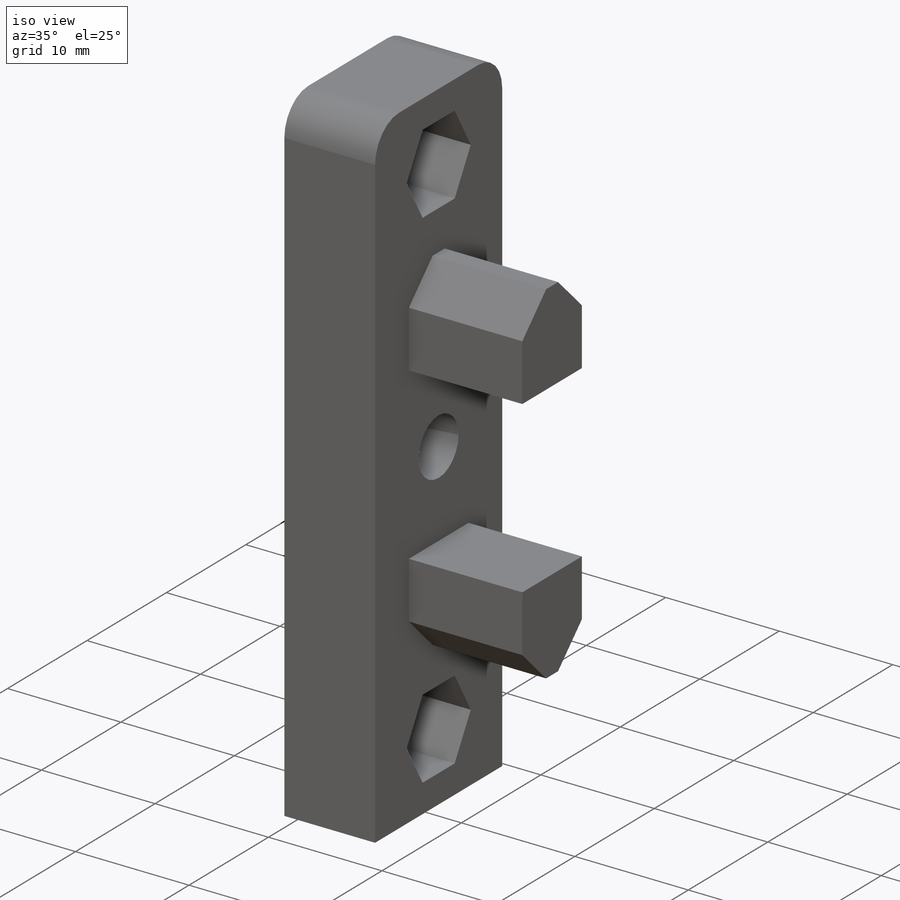
[diagram: iso view]
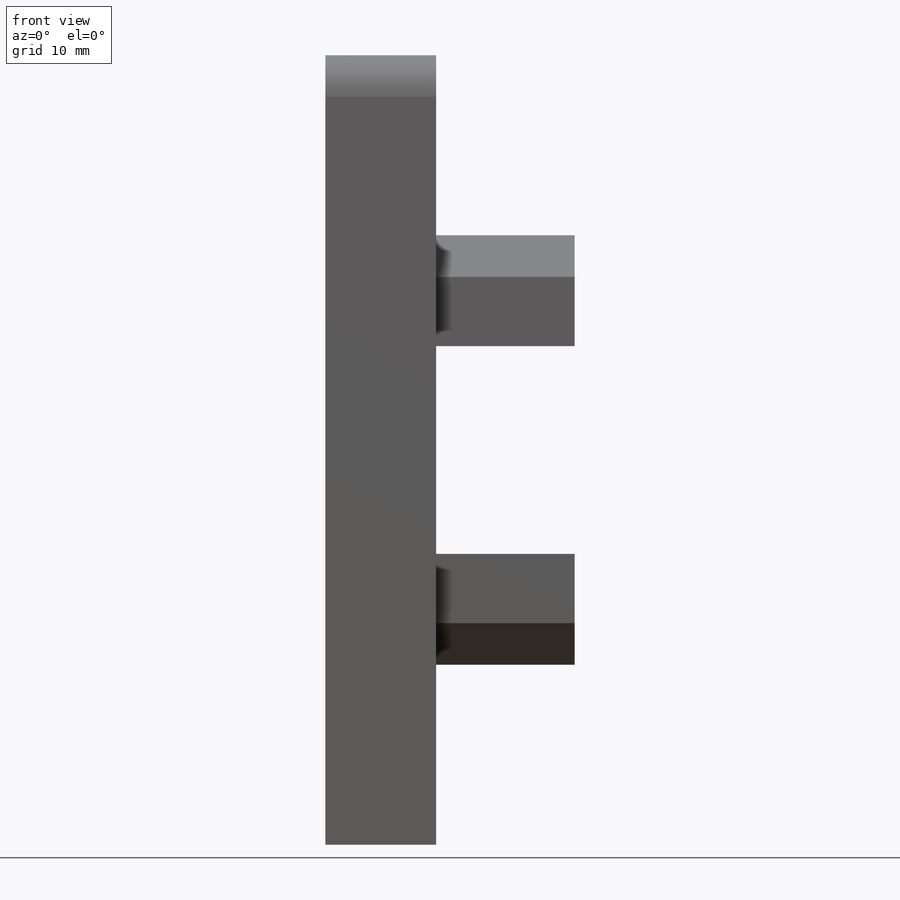
[diagram: front view]
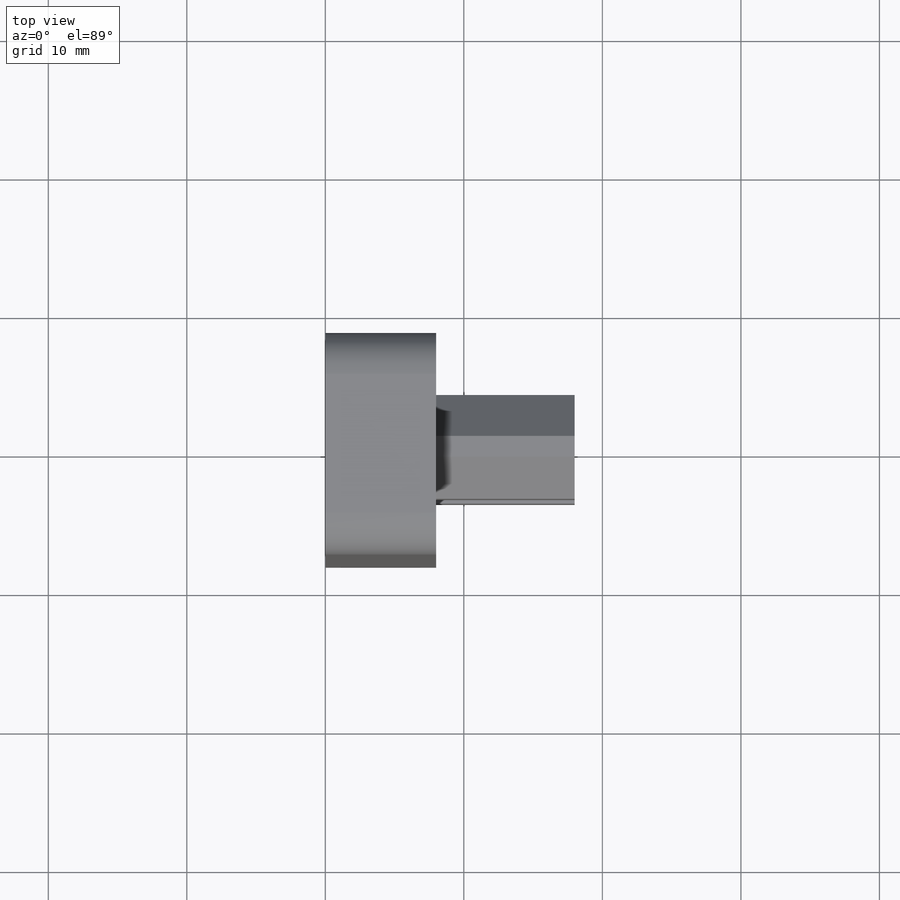
[diagram: top view]
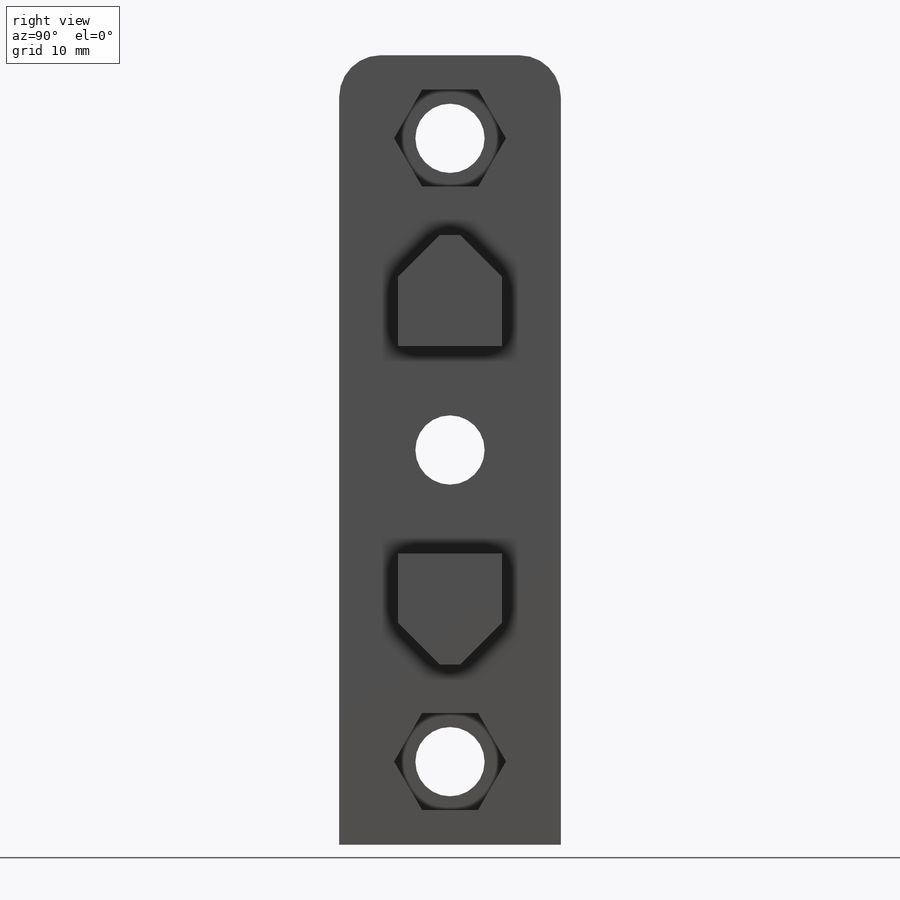
[diagram: right view]
SOLIDWORKS PART (.sldprt)
format: sldprt  version: not decoded by parser v0  size: 233,472 bytes
history: native  units: mm
features: sketch x5, plane x3, cut_extrude x3, extrude x2, material x1, chamfer x1, mirror x1, fillet x1 (+10 scaffold rows collapsed)
feature tree (27):
  scaffold x10  (default folders/planes/origin — collapsed)
  material  "Matériau <non spécifié>"
  plane  "Plan de face"
  plane  "Plan de dessus"
  plane  "Plan de droite"
  sketch  "Esquisse1"  dims[D1=16.0mm D2=28.5mm]
  extrude  "Boss.-Extru.1"  Depth=8mm
  sketch  "Esquisse2"  dims[D1=7.0mm D2=6.0mm]
  cut_extrude  "Enlèv. mat.-Extru.1"  Depth=5.5mm
  sketch  "Esquisse3"  dims[D1=5.0mm D2=~4.041452mm]
  cut_extrude  "Enlèv. mat.-Extru.2"  [1 undecoded]
  sketch  "Esquisse4"  dims[D1=8.0mm D2=21.0mm D3=7.5mm]
  extrude  "Boss.-Extru.2"  Depth=10mm
  chamfer  "Chanfrein2"  Distance=3mm Angle=45deg
  mirror  "Symétrie1"
  sketch  "Esquisse5"  dims[D1=5.0mm D2=8.0mm]
  cut_extrude  "Enlèv. mat.-Extru.3"  [1 undecoded]
  fillet  "Congé1"  Radius=3mm
decode coverage: 10 of 13 modeling features carry decoded parameters
note: ~ marks probable driven/reference dimensions
note: 2 parameter values undecoded
note: suppression state not decoded; provenance and decode notes live in map.json
